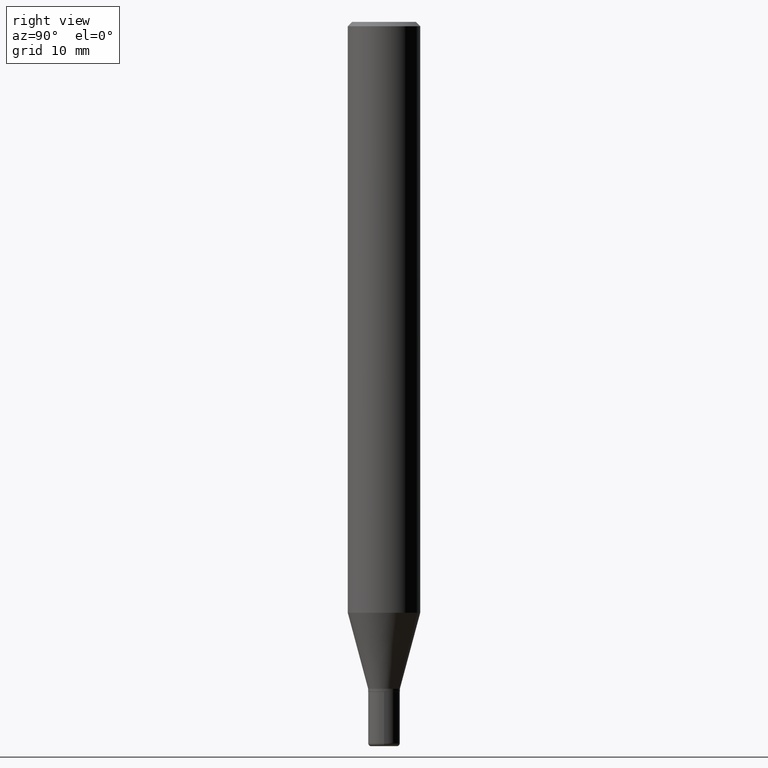
[diagram: clean part render]
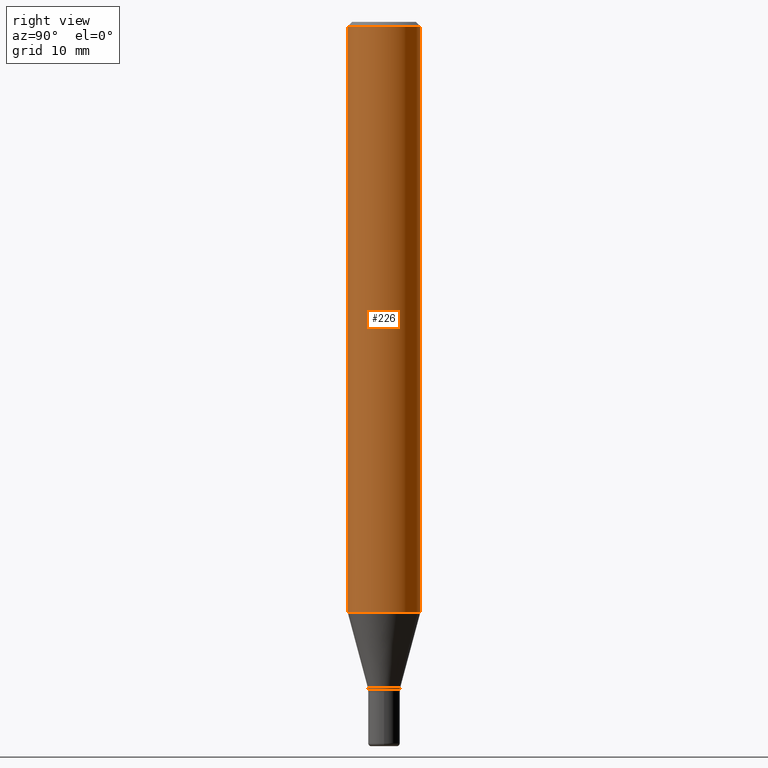
[diagram: same view with one face highlighted and labeled with its STEP entity id]
A machine part, right view. The second image highlights one B-rep face of the part: STEP entity #226.
In plain terms, the highlighted cylindrical surface (edge-blend (fillet) strip) has radius 3.175 mm, axis along (-0, 0, 1).
Its self-contained STEP definition (entity closure, byte-faithful):
#14 = CARTESIAN_POINT ( 'NONE',  ( -8.728703347107828458E-16, -0.1250000000000000555, -0.01500000000000006363 ) ) ;
#22 = EDGE_LOOP ( 'NONE', ( #136, #217, #504, #269 ) ) ;
#36 = EDGE_CURVE ( 'NONE', #205, #92, #509, .T. ) ;
#68 = CARTESIAN_POINT ( 'NONE',  ( -8.728703347107832402E-16, -0.1250000000000000000, 4.364428348011821341E-16 ) ) ;
#70 = DIRECTION ( 'NONE',  ( -2.445425972994914586E-29, 3.491542678409457073E-15, 1.000000000000000000 ) ) ;
#72 = CARTESIAN_POINT ( 'NONE',  ( 8.881784197001251337E-16, 0.1250000000000000000, -4.364428348011821341E-16 ) ) ;
#74 = EDGE_CURVE ( 'NONE', #92, #145, #430, .T. ) ;
#80 = AXIS2_PLACEMENT_3D ( 'NONE', #228, #70, #108 ) ;
#90 = CARTESIAN_POINT ( 'NONE',  ( 8.881784197001751278E-16, 0.1249999999999999306, -0.01500000000000093446 ) ) ;
#92 = VERTEX_POINT ( 'NONE', #380 ) ;
#108 = DIRECTION ( 'NONE',  ( -6.982962677686265922E-15, -1.000000000000000000, 4.370956789862821150E-15 ) ) ;
#112 = VERTEX_POINT ( 'NONE', #14 ) ;
#123 = CIRCLE ( 'NONE', #451, 0.1250000000000000000 ) ;
#125 = DIRECTION ( 'NONE',  ( -2.445425972994914586E-29, 3.491542678409457073E-15, 1.000000000000000000 ) ) ;
#136 = ORIENTED_EDGE ( 'NONE', *, *, #36, .T. ) ;
#145 = VERTEX_POINT ( 'NONE', #90 ) ;
#172 = EDGE_CURVE ( 'NONE', #112, #145, #123, .T. ) ;
#205 = VERTEX_POINT ( 'NONE', #396 ) ;
#217 = ORIENTED_EDGE ( 'NONE', *, *, #74, .T. ) ;
#226 = ADVANCED_FACE ( 'NONE', ( #357 ), #517, .T. ) ;
#228 = CARTESIAN_POINT ( 'NONE',  ( 4.987780875225493801E-29, -7.121479034213441071E-15, -2.039636828227908261 ) ) ;
#242 = VECTOR ( 'NONE', #377, 39.37007874015748143 ) ;
#263 = LINE ( 'NONE', #68, #242 ) ;
#269 = ORIENTED_EDGE ( 'NONE', *, *, #354, .F. ) ;
#286 = DIRECTION ( 'NONE',  ( -6.982962677686265922E-15, -1.000000000000000000, 3.491542678409457073E-15 ) ) ;
#290 = AXIS2_PLACEMENT_3D ( 'NONE', #322, #125, #286 ) ;
#296 = DIRECTION ( 'NONE',  ( -6.982962677686265922E-15, -1.000000000000000000, 3.483106191921935554E-15 ) ) ;
#322 = CARTESIAN_POINT ( 'NONE',  ( 0.000000000000000000, 0.000000000000000000, 0.000000000000000000 ) ) ;
#351 = VECTOR ( 'NONE', #494, 39.37007874015748143 ) ;
#354 = EDGE_CURVE ( 'NONE', #205, #112, #263, .T. ) ;
#357 = FACE_OUTER_BOUND ( 'NONE', #22, .T. ) ;
#364 = DIRECTION ( 'NONE',  ( -2.445425972994914586E-29, 3.491542678409457073E-15, 1.000000000000000000 ) ) ;
#377 = DIRECTION ( 'NONE',  ( -2.445425972994914586E-29, 3.491542678409457073E-15, 1.000000000000000000 ) ) ;
#380 = CARTESIAN_POINT ( 'NONE',  ( 8.881784197001751278E-16, 0.1249999999999929085, -2.039636828227908705 ) ) ;
#396 = CARTESIAN_POINT ( 'NONE',  ( -8.728703347107332462E-16, -0.1250000000000070777, -2.039636828227907817 ) ) ;
#400 = CARTESIAN_POINT ( 'NONE',  ( 3.668138959492494003E-31, -5.237314017614360786E-17, -0.01500000000000049905 ) ) ;
#430 = LINE ( 'NONE', #72, #351 ) ;
#451 = AXIS2_PLACEMENT_3D ( 'NONE', #400, #364, #296 ) ;
#494 = DIRECTION ( 'NONE',  ( -2.445425972994914586E-29, 3.491542678409457073E-15, 1.000000000000000000 ) ) ;
#504 = ORIENTED_EDGE ( 'NONE', *, *, #172, .F. ) ;
#509 = CIRCLE ( 'NONE', #80, 0.1250000000000000000 ) ;
#517 = CYLINDRICAL_SURFACE ( 'NONE', #290, 0.1250000000000000000 ) ;